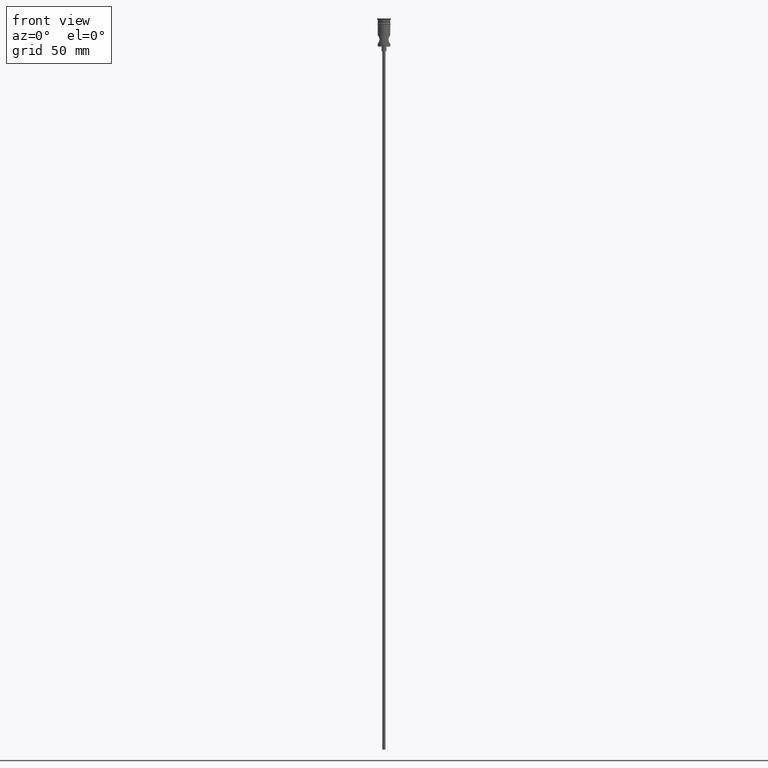
[diagram: clean part render]
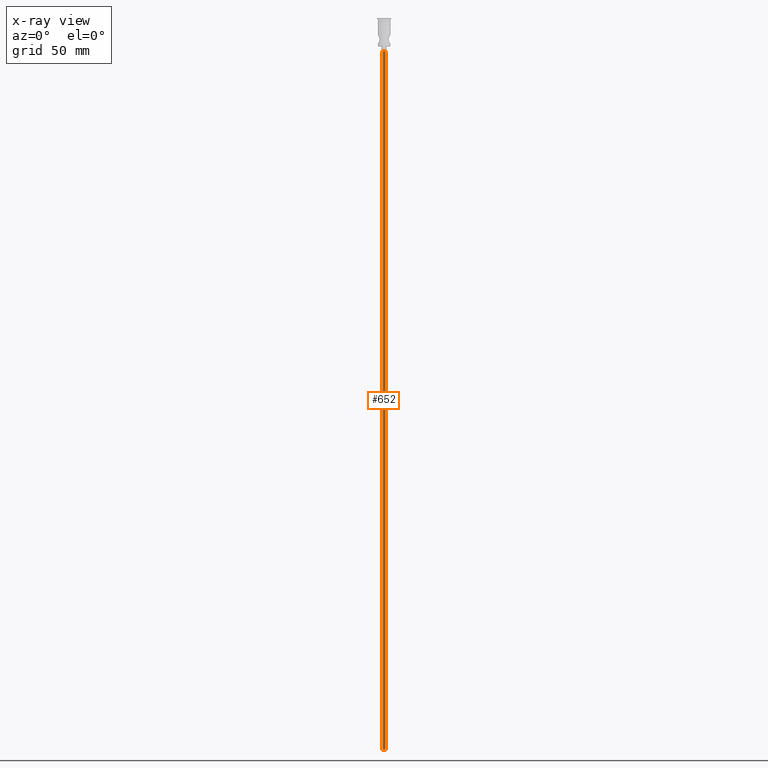
[diagram: x-ray — body ghosted, one internal face saturated and labeled with its STEP entity id]
A machine part, front view, then the same camera in x-ray: the body is ghosted and one INTERNAL B-rep face — a face not visible from any outside direction — is saturated and labeled: STEP entity #652.
In plain terms, the highlighted cylindrical surface (edge-blend (fillet) strip) has radius 1 mm, axis along (-0, -0, 1).
Its self-contained STEP definition (entity closure, byte-faithful):
#42 = DIRECTION ( 'NONE',  ( 1.000000000000000000, 0.000000000000000000, 0.000000000000000000 ) ) ;
#70 = CARTESIAN_POINT ( 'NONE',  ( 0.9999999999999997780, 0.000000000000000000, -468.0000000000000000 ) ) ;
#103 = CIRCLE ( 'NONE', #900, 0.9999999999999997780 ) ;
#170 = VERTEX_POINT ( 'NONE', #1049 ) ;
#335 = ORIENTED_EDGE ( 'NONE', *, *, #640, .T. ) ;
#354 = VERTEX_POINT ( 'NONE', #70 ) ;
#372 = CARTESIAN_POINT ( 'NONE',  ( 0.9999999999999997780, 0.000000000000000000, -20.99999999999999645 ) ) ;
#378 = CIRCLE ( 'NONE', #1170, 0.9999999999999997780 ) ;
#406 = LINE ( 'NONE', #1340, #643 ) ;
#408 = VERTEX_POINT ( 'NONE', #372 ) ;
#489 = VERTEX_POINT ( 'NONE', #1353 ) ;
#520 = CARTESIAN_POINT ( 'NONE',  ( 0.9999999999999997780, 0.000000000000000000, -468.0000000000000000 ) ) ;
#608 = ORIENTED_EDGE ( 'NONE', *, *, #1245, .F. ) ;
#640 = EDGE_CURVE ( 'NONE', #170, #408, #378, .T. ) ;
#643 = VECTOR ( 'NONE', #1135, 1000.000000000000000 ) ;
#652 = ADVANCED_FACE ( 'NONE', ( #930 ), #1364, .T. ) ;
#666 = EDGE_CURVE ( 'NONE', #489, #354, #103, .T. ) ;
#698 = DIRECTION ( 'NONE',  ( 0.000000000000000000, 0.000000000000000000, -1.000000000000000000 ) ) ;
#786 = EDGE_CURVE ( 'NONE', #489, #170, #406, .T. ) ;
#821 = CARTESIAN_POINT ( 'NONE',  ( 0.000000000000000000, 0.000000000000000000, -20.99999999999999645 ) ) ;
#852 = CARTESIAN_POINT ( 'NONE',  ( 0.000000000000000000, 0.000000000000000000, -468.0000000000000000 ) ) ;
#900 = AXIS2_PLACEMENT_3D ( 'NONE', #1221, #698, #1231 ) ;
#930 = FACE_OUTER_BOUND ( 'NONE', #1026, .T. ) ;
#991 = AXIS2_PLACEMENT_3D ( 'NONE', #852, #1189, #42 ) ;
#1026 = EDGE_LOOP ( 'NONE', ( #1053, #1131, #335, #608 ) ) ;
#1049 = CARTESIAN_POINT ( 'NONE',  ( -0.9999999999999997780, 1.224646799147352961E-16, -20.99999999999999645 ) ) ;
#1053 = ORIENTED_EDGE ( 'NONE', *, *, #666, .F. ) ;
#1083 = LINE ( 'NONE', #520, #1305 ) ;
#1131 = ORIENTED_EDGE ( 'NONE', *, *, #786, .T. ) ;
#1135 = DIRECTION ( 'NONE',  ( -0.000000000000000000, -0.000000000000000000, 1.000000000000000000 ) ) ;
#1140 = DIRECTION ( 'NONE',  ( 0.000000000000000000, 0.000000000000000000, -1.000000000000000000 ) ) ;
#1153 = DIRECTION ( 'NONE',  ( -1.000000000000000000, 0.000000000000000000, 0.000000000000000000 ) ) ;
#1170 = AXIS2_PLACEMENT_3D ( 'NONE', #821, #1140, #1153 ) ;
#1189 = DIRECTION ( 'NONE',  ( -0.000000000000000000, -0.000000000000000000, 1.000000000000000000 ) ) ;
#1221 = CARTESIAN_POINT ( 'NONE',  ( 0.000000000000000000, 0.000000000000000000, -468.0000000000000000 ) ) ;
#1223 = DIRECTION ( 'NONE',  ( -0.000000000000000000, -0.000000000000000000, 1.000000000000000000 ) ) ;
#1231 = DIRECTION ( 'NONE',  ( -1.000000000000000000, 0.000000000000000000, 0.000000000000000000 ) ) ;
#1245 = EDGE_CURVE ( 'NONE', #354, #408, #1083, .T. ) ;
#1305 = VECTOR ( 'NONE', #1223, 1000.000000000000000 ) ;
#1340 = CARTESIAN_POINT ( 'NONE',  ( -0.9999999999999997780, 1.224646799147352961E-16, -468.0000000000000000 ) ) ;
#1353 = CARTESIAN_POINT ( 'NONE',  ( -0.9999999999999997780, 1.224646799147352961E-16, -468.0000000000000000 ) ) ;
#1364 = CYLINDRICAL_SURFACE ( 'NONE', #991, 0.9999999999999997780 ) ;